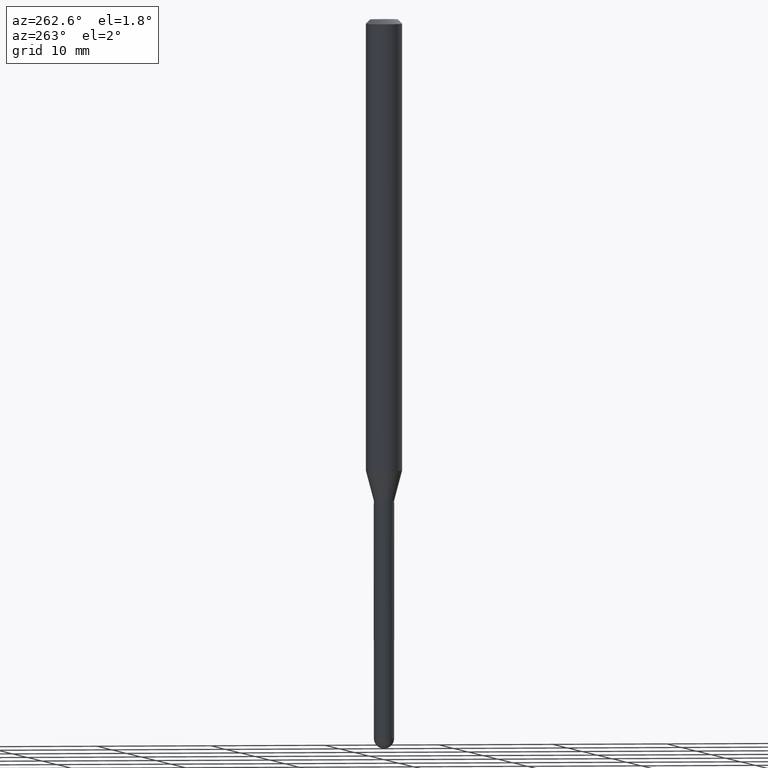
[diagram: clean part render]
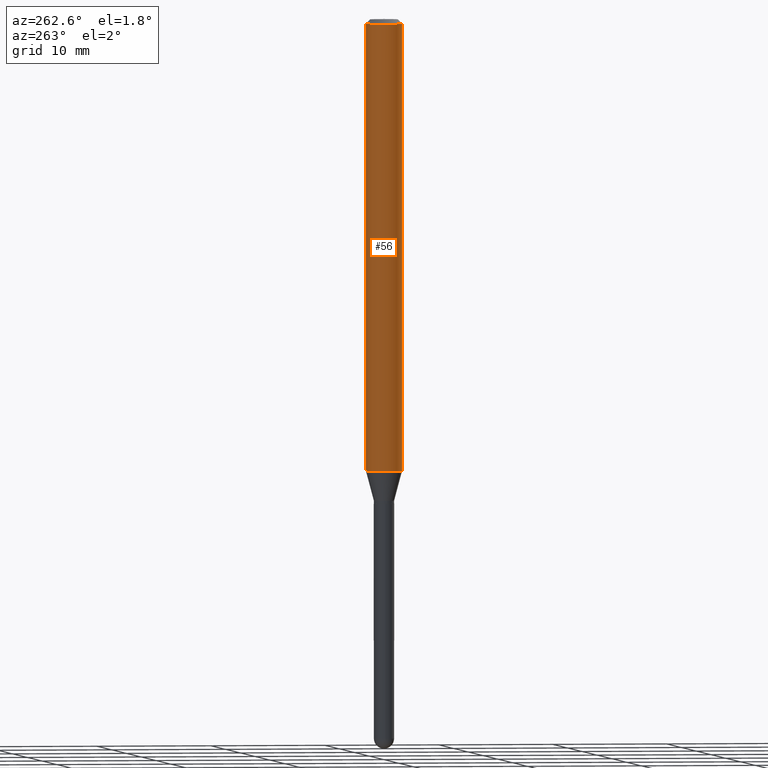
[diagram: same view with one face highlighted and labeled with its STEP entity id]
A machine part, auxiliary view. The second image highlights one B-rep face of the part: STEP entity #56.
In plain terms, the highlighted cylindrical surface (edge-blend (fillet) strip) has radius 1.5875 mm, axis along (-0, 0, 1).
Its self-contained STEP definition (entity closure, byte-faithful):
#4 = VERTEX_POINT ( 'NONE', #54 ) ;
#5 = CARTESIAN_POINT ( 'NONE',  ( 3.783948471057598170E-29, -5.402742038218876257E-15, -1.547368602791855619 ) ) ;
#34 = DIRECTION ( 'NONE',  ( -6.982962677686265922E-15, -1.000000000000000000, 3.483106191921935554E-15 ) ) ;
#42 = VERTEX_POINT ( 'NONE', #134 ) ;
#48 = EDGE_LOOP ( 'NONE', ( #201, #229, #415, #343 ) ) ;
#52 = VECTOR ( 'NONE', #462, 39.37007874015748143 ) ;
#54 = CARTESIAN_POINT ( 'NONE',  ( 4.440892098501000871E-16, 0.06249999999999455991, -1.547368602791856063 ) ) ;
#56 = ADVANCED_FACE ( 'NONE', ( #370 ), #156, .T. ) ;
#60 = CARTESIAN_POINT ( 'NONE',  ( 0.000000000000000000, 0.000000000000000000, 0.000000000000000000 ) ) ;
#62 = DIRECTION ( 'NONE',  ( -2.445408588639041950E-29, 3.491567573796523366E-15, 1.000000000000000000 ) ) ;
#65 = VECTOR ( 'NONE', #334, 39.37007874015748143 ) ;
#75 = CARTESIAN_POINT ( 'NONE',  ( -4.364351673553916201E-16, -0.06250000000000000000, 2.182229733622826857E-16 ) ) ;
#80 = AXIS2_PLACEMENT_3D ( 'NONE', #5, #194, #478 ) ;
#111 = AXIS2_PLACEMENT_3D ( 'NONE', #221, #297, #34 ) ;
#134 = CARTESIAN_POINT ( 'NONE',  ( -4.364351673553912750E-16, -0.06250000000000005551, -0.01500000000000011047 ) ) ;
#139 = EDGE_CURVE ( 'NONE', #4, #151, #179, .T. ) ;
#151 = VERTEX_POINT ( 'NONE', #322 ) ;
#156 = CYLINDRICAL_SURFACE ( 'NONE', #342, 0.06250000000000000000 ) ;
#159 = CIRCLE ( 'NONE', #111, 0.06250000000000000000 ) ;
#179 = CIRCLE ( 'NONE', #80, 0.06250000000000000000 ) ;
#182 = LINE ( 'NONE', #335, #52 ) ;
#194 = DIRECTION ( 'NONE',  ( -2.445408588639041950E-29, 3.491567573796523366E-15, 1.000000000000000000 ) ) ;
#201 = ORIENTED_EDGE ( 'NONE', *, *, #281, .F. ) ;
#221 = CARTESIAN_POINT ( 'NONE',  ( 3.668112882958643079E-31, -5.237351360694899581E-17, -0.01500000000000032904 ) ) ;
#229 = ORIENTED_EDGE ( 'NONE', *, *, #139, .T. ) ;
#281 = EDGE_CURVE ( 'NONE', #4, #429, #182, .T. ) ;
#295 = EDGE_CURVE ( 'NONE', #429, #42, #159, .T. ) ;
#297 = DIRECTION ( 'NONE',  ( -2.445408588639041950E-29, 3.491567573796523366E-15, 1.000000000000000000 ) ) ;
#309 = CARTESIAN_POINT ( 'NONE',  ( 4.440892098501006787E-16, 0.06249999999999995143, -0.01500000000000054588 ) ) ;
#313 = DIRECTION ( 'NONE',  ( -6.982962677686265922E-15, -1.000000000000000000, 3.491567573796522971E-15 ) ) ;
#322 = CARTESIAN_POINT ( 'NONE',  ( -4.364351673553540013E-16, -0.06250000000000544009, -1.547368602791855396 ) ) ;
#334 = DIRECTION ( 'NONE',  ( -2.445408588639042230E-29, 3.491567573796523366E-15, 1.000000000000000000 ) ) ;
#335 = CARTESIAN_POINT ( 'NONE',  ( 4.440892098500625669E-16, 0.06250000000000000000, -2.182229733622826857E-16 ) ) ;
#342 = AXIS2_PLACEMENT_3D ( 'NONE', #60, #62, #313 ) ;
#343 = ORIENTED_EDGE ( 'NONE', *, *, #295, .F. ) ;
#370 = FACE_OUTER_BOUND ( 'NONE', #48, .T. ) ;
#380 = EDGE_CURVE ( 'NONE', #151, #42, #426, .T. ) ;
#415 = ORIENTED_EDGE ( 'NONE', *, *, #380, .T. ) ;
#426 = LINE ( 'NONE', #75, #65 ) ;
#429 = VERTEX_POINT ( 'NONE', #309 ) ;
#462 = DIRECTION ( 'NONE',  ( -2.445408588639042230E-29, 3.491567573796523366E-15, 1.000000000000000000 ) ) ;
#478 = DIRECTION ( 'NONE',  ( -6.982962677686265922E-15, -1.000000000000000000, 4.370956789862821150E-15 ) ) ;